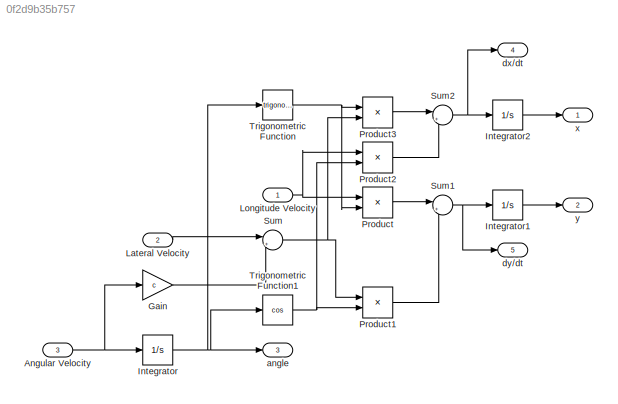
MODEL slx_0f2d9b35b757
KIND model
CONFIG AbsTol = auto
CONFIG EnableMultiTasking = off
CONFIG FixedStep = auto
CONFIG MaxStep = auto
CONFIG MinStep = auto
CONFIG RelTol = 1e-3
CONFIG SampleTimeConstraint = Unconstrained
CONFIG SolverName = FixedStepAuto
CONFIG StartTime = 0.0
CONFIG StopTime = 10.0
BLOCK [Inport] Angular Velocity
  Port = 3
BLOCK [Gain] Gain
  Gain = c
BLOCK [Integrator] Integrator
BLOCK [Integrator] Integrator1
BLOCK [Integrator] Integrator2
BLOCK [Inport] Lateral Velocity
  Port = 2
BLOCK [Inport] Longitude Velocity
BLOCK [Product] Product
BLOCK [Product] Product1
BLOCK [Product] Product2
BLOCK [Product] Product3
BLOCK [Sum] Sum
  Inputs = |+-
BLOCK [Sum] Sum1
  Inputs = |+-
BLOCK [Sum] Sum2
  Inputs = |++
BLOCK [Trigonometry] Trigonometric Function
BLOCK [Trigonometry] Trigonometric Function1
  Operator = cos
BLOCK [Outport] angle
  Port = 3
BLOCK [Outport] dx//dt
  Port = 4
BLOCK [Outport] dy//dt
  Port = 5
BLOCK [Outport] x
BLOCK [Outport] y
  Port = 2
NET Angular Velocity:1 -> Gain:1, Integrator:1
LINE Gain:1 -> Sum:2
LINE Integrator1:1 -> y:1
LINE Integrator2:1 -> x:1
NET Integrator:1 -> Trigonometric Function1:1, Trigonometric Function:1, angle:1
LINE Lateral Velocity:1 -> Sum:1
NET Longitude Velocity:1 -> Product2:1, Product:1
LINE Product1:1 -> Sum1:2
LINE Product2:1 -> Sum2:2
LINE Product3:1 -> Sum2:1
LINE Product:1 -> Sum1:1
NET Sum1:1 -> Integrator1:1, dy//dt:1
NET Sum2:1 -> Integrator2:1, dx//dt:1
NET Sum:1 -> Product1:1, Product3:2
NET Trigonometric Function1:1 -> Product1:2, Product2:2
NET Trigonometric Function:1 -> Product3:1, Product:2
note: NET lines group one-source signal fan-out (src -> all destinations, sorted); 1:1 wires keep LINE
